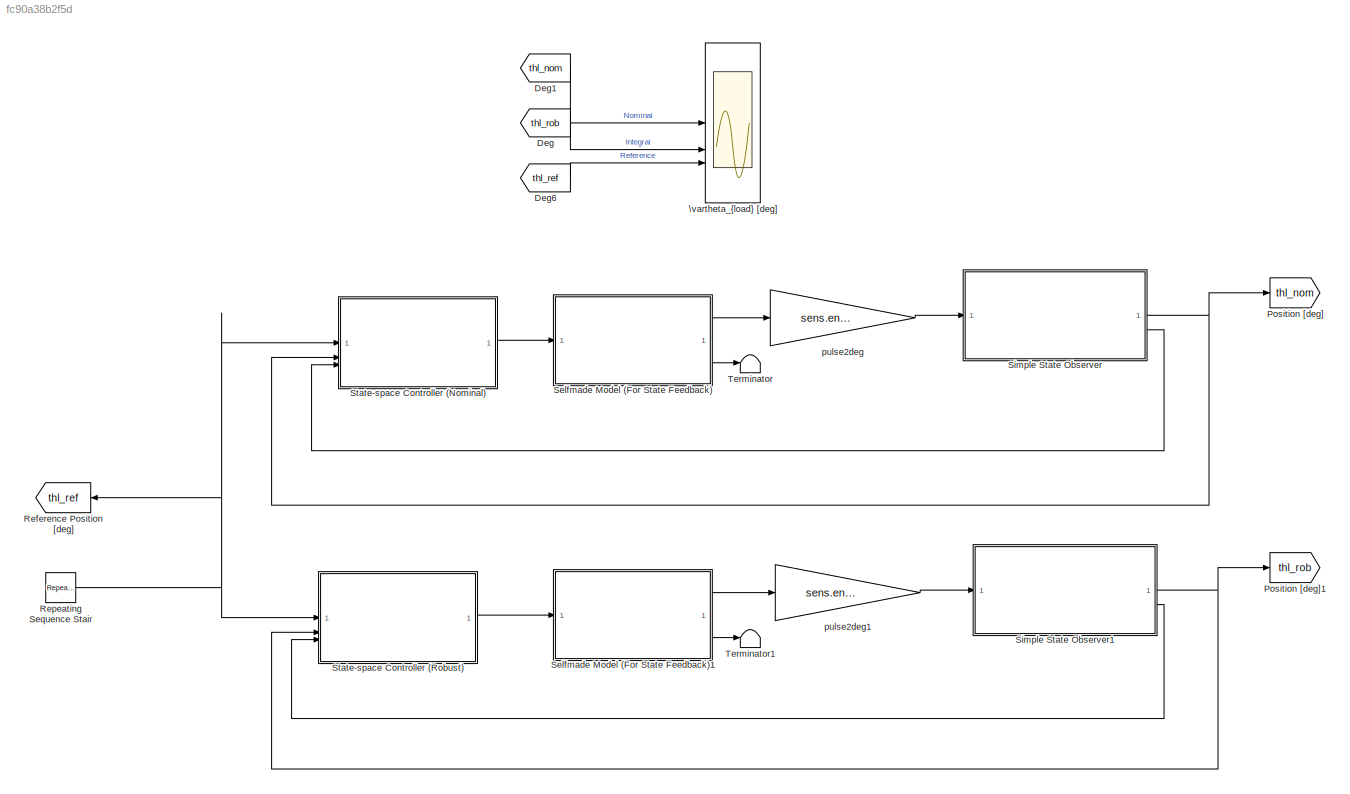
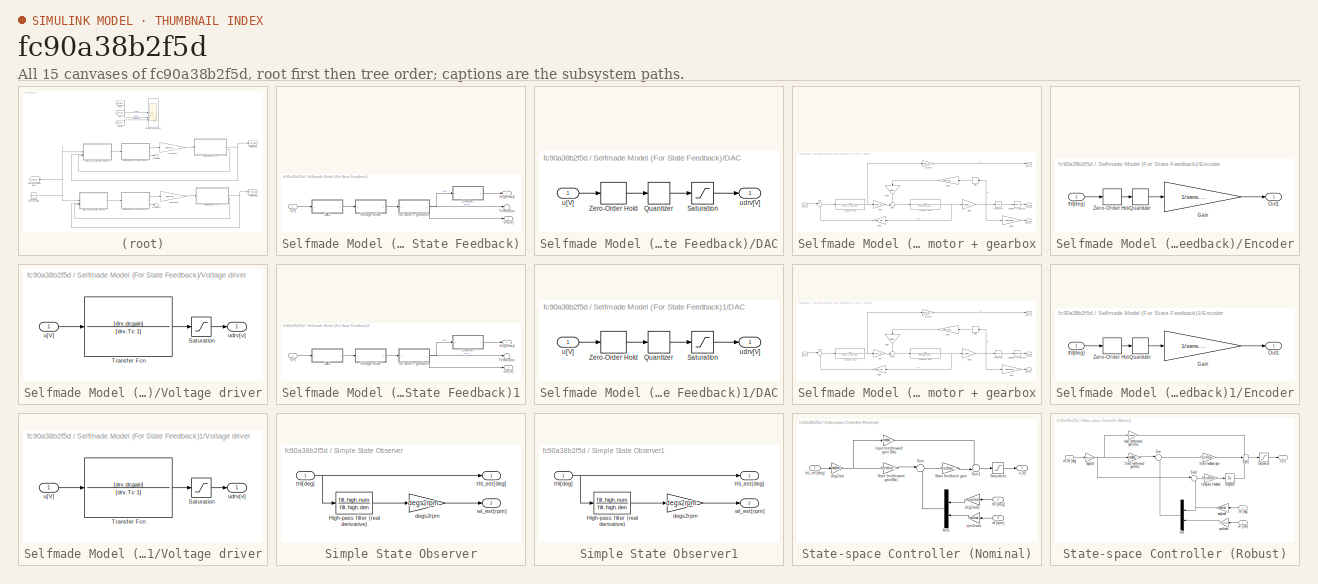
[diagram: thumbnail index - all 15 canvases of the model, root first then tree order]
MODEL slx_fc90a38b2f5d
KIND model
CONFIG AbsTol = auto
CONFIG EnableMultiTasking = off
CONFIG FixedStep = auto
CONFIG MaxStep = auto
CONFIG MinStep = auto
CONFIG RelTol = auto
CONFIG SampleTimeConstraint = Unconstrained
CONFIG SolverName = ode45
CONFIG StartTime = 0.0
CONFIG StopTime = sIn.simulation_time
BLOCK [From] Deg
  GotoTag = thl_rob
BLOCK [From] Deg1
  GotoTag = thl_nom
BLOCK [From] Deg6
  GotoTag = thl_ref
BLOCK [Goto] Position [deg]
  GotoTag = thl_nom
BLOCK [Goto] Position [deg]1
  GotoTag = thl_rob
BLOCK [Goto] Reference Position [deg]
  GotoTag = thl_ref
  NameLocation = top
BLOCK [Reference] Repeating Sequence Stair  REF=simulink/Sources/Repeating
Sequence
Stair
  SourceBlock = simulink/Sources/Repeating\nSequence\nStair
  SourceType = Repeating Sequence Stair
BLOCK [SubSystem] Selfmade Model (For State Feedback)
BLOCK [SubSystem] Selfmade Model (For State Feedback)/DAC
BLOCK [Quantizer] Selfmade Model (For State Feedback)/DAC/Quantizer
  QuantizationInterval = daq.dac.q
BLOCK [Saturate] Selfmade Model (For State Feedback)/DAC/Saturation
  LowerLimit = -10
  UpperLimit = 10
BLOCK [ZeroOrderHold] Selfmade Model (For State Feedback)/DAC/Zero-Order Hold
  SampleTime = 1e-3
BLOCK [Inport] Selfmade Model (For State Feedback)/DAC/u[V]
BLOCK [Outport] Selfmade Model (For State Feedback)/DAC/udrv[V]
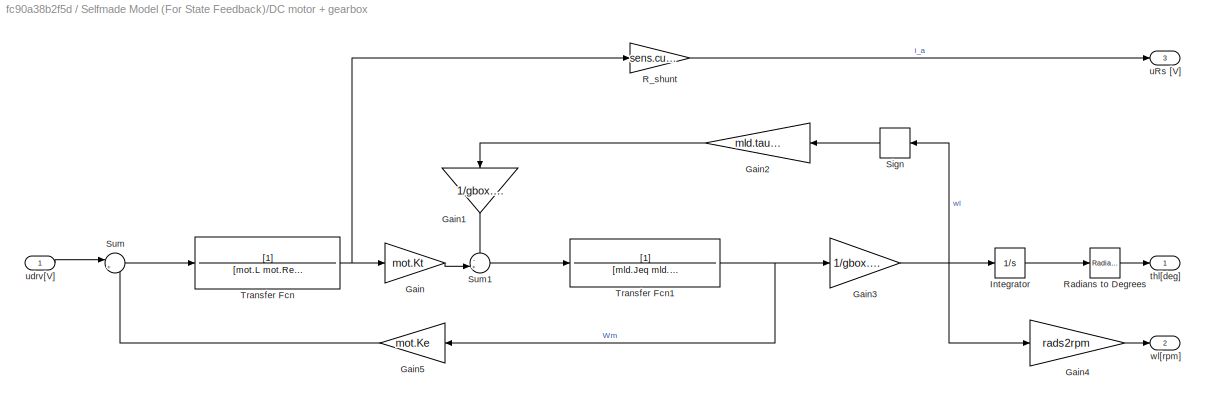
BLOCK [SubSystem] Selfmade Model (For State Feedback)/DC motor + gearbox
BLOCK [Gain] Selfmade Model (For State Feedback)/DC motor + gearbox/Gain
  Gain = mot.Kt
BLOCK [Gain] Selfmade Model (For State Feedback)/DC motor + gearbox/Gain1
  Gain = 1/gbox.N1
  NameLocation = left
BLOCK [Gain] Selfmade Model (For State Feedback)/DC motor + gearbox/Gain2
  Gain = mld.tausf
  NameLocation = top
BLOCK [Gain] Selfmade Model (For State Feedback)/DC motor + gearbox/Gain3
  Gain = 1/gbox.N1
BLOCK [Gain] Selfmade Model (For State Feedback)/DC motor + gearbox/Gain4
  Gain = rads2rpm
BLOCK [Gain] Selfmade Model (For State Feedback)/DC motor + gearbox/Gain5
  Gain = mot.Ke
  NameLocation = top
BLOCK [Integrator] Selfmade Model (For State Feedback)/DC motor + gearbox/Integrator
BLOCK [Gain] Selfmade Model (For State Feedback)/DC motor + gearbox/R_shunt
  Gain = sens.curr.Rs
BLOCK [Reference] Selfmade Model (For State Feedback)/DC motor + gearbox/Radians to Degrees  REF=simulink_extras/Transformations/Radians
to Degrees
  SourceBlock = simulink_extras/Transformations/Radians\nto Degrees
  SourceType = RadiansToDegrees
BLOCK [Signum] Selfmade Model (For State Feedback)/DC motor + gearbox/Sign
  NameLocation = top
  ZeroCross = off
BLOCK [Sum] Selfmade Model (For State Feedback)/DC motor + gearbox/Sum
  Inputs = |+-
BLOCK [Sum] Selfmade Model (For State Feedback)/DC motor + gearbox/Sum1
  Inputs = -+|
BLOCK [TransferFcn] Selfmade Model (For State Feedback)/DC motor + gearbox/Transfer Fcn
  Denominator = [mot.L mot.Req]
BLOCK [TransferFcn] Selfmade Model (For State Feedback)/DC motor + gearbox/Transfer Fcn1
  Denominator = [mld.Jeq mld.Beq]
BLOCK [Outport] Selfmade Model (For State Feedback)/DC motor + gearbox/thl[deg]
BLOCK [Outport] Selfmade Model (For State Feedback)/DC motor + gearbox/uRs [V]
  Port = 3
BLOCK [Inport] Selfmade Model (For State Feedback)/DC motor + gearbox/udrv[V]
BLOCK [Outport] Selfmade Model (For State Feedback)/DC motor + gearbox/wl[rpm]
  Port = 2
BLOCK [SubSystem] Selfmade Model (For State Feedback)/Encoder
  NameLocation = top
BLOCK [Gain] Selfmade Model (For State Feedback)/Encoder/Gain
  Gain = 1/sens.enc.pulse2deg
BLOCK [Outport] Selfmade Model (For State Feedback)/Encoder/Out1
BLOCK [Quantizer] Selfmade Model (For State Feedback)/Encoder/Quantizer
  QuantizationInterval = sens.enc.pulse2deg
BLOCK [ZeroOrderHold] Selfmade Model (For State Feedback)/Encoder/Zero-Order Hold
  SampleTime = 1e-3
BLOCK [Inport] Selfmade Model (For State Feedback)/Encoder/thl[deg]
BLOCK [Terminator] Selfmade Model (For State Feedback)/Terminator
BLOCK [SubSystem] Selfmade Model (For State Feedback)/Voltage driver
BLOCK [Saturate] Selfmade Model (For State Feedback)/Voltage driver/Saturation
  LowerLimit = -12
  UpperLimit = 12
BLOCK [TransferFcn] Selfmade Model (For State Feedback)/Voltage driver/Transfer Fcn
  Denominator = [drv.Tc 1]
  Numerator = [drv.dcgain]
BLOCK [Inport] Selfmade Model (For State Feedback)/Voltage driver/u[V]
BLOCK [Outport] Selfmade Model (For State Feedback)/Voltage driver/udrv[v]
BLOCK [Outport] Selfmade Model (For State Feedback)/thl[pulses]
BLOCK [Outport] Selfmade Model (For State Feedback)/uRs [V]
  Port = 2
BLOCK [Inport] Selfmade Model (For State Feedback)/u[V]
BLOCK [SubSystem] Selfmade Model (For State Feedback)1
BLOCK [SubSystem] Selfmade Model (For State Feedback)1/DAC
BLOCK [Quantizer] Selfmade Model (For State Feedback)1/DAC/Quantizer
  QuantizationInterval = daq.dac.q
BLOCK [Saturate] Selfmade Model (For State Feedback)1/DAC/Saturation
  LowerLimit = -10
  UpperLimit = 10
BLOCK [ZeroOrderHold] Selfmade Model (For State Feedback)1/DAC/Zero-Order Hold
  SampleTime = 1e-3
BLOCK [Inport] Selfmade Model (For State Feedback)1/DAC/u[V]
BLOCK [Outport] Selfmade Model (For State Feedback)1/DAC/udrv[V]
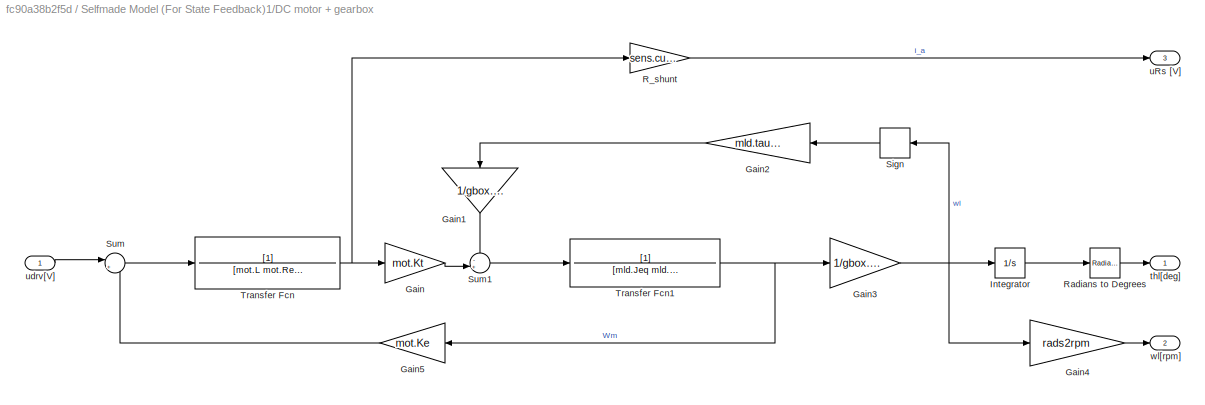
BLOCK [SubSystem] Selfmade Model (For State Feedback)1/DC motor + gearbox
BLOCK [Gain] Selfmade Model (For State Feedback)1/DC motor + gearbox/Gain
  Gain = mot.Kt
BLOCK [Gain] Selfmade Model (For State Feedback)1/DC motor + gearbox/Gain1
  Gain = 1/gbox.N1
  NameLocation = left
BLOCK [Gain] Selfmade Model (For State Feedback)1/DC motor + gearbox/Gain2
  Gain = mld.tausf
  NameLocation = top
BLOCK [Gain] Selfmade Model (For State Feedback)1/DC motor + gearbox/Gain3
  Gain = 1/gbox.N1
BLOCK [Gain] Selfmade Model (For State Feedback)1/DC motor + gearbox/Gain4
  Gain = rads2rpm
BLOCK [Gain] Selfmade Model (For State Feedback)1/DC motor + gearbox/Gain5
  Gain = mot.Ke
  NameLocation = top
BLOCK [Integrator] Selfmade Model (For State Feedback)1/DC motor + gearbox/Integrator
BLOCK [Gain] Selfmade Model (For State Feedback)1/DC motor + gearbox/R_shunt
  Gain = sens.curr.Rs
BLOCK [Reference] Selfmade Model (For State Feedback)1/DC motor + gearbox/Radians to Degrees  REF=simulink_extras/Transformations/Radians
to Degrees
  SourceBlock = simulink_extras/Transformations/Radians\nto Degrees
  SourceType = RadiansToDegrees
BLOCK [Signum] Selfmade Model (For State Feedback)1/DC motor + gearbox/Sign
  NameLocation = top
  ZeroCross = off
BLOCK [Sum] Selfmade Model (For State Feedback)1/DC motor + gearbox/Sum
  Inputs = |+-
BLOCK [Sum] Selfmade Model (For State Feedback)1/DC motor + gearbox/Sum1
  Inputs = -+|
BLOCK [TransferFcn] Selfmade Model (For State Feedback)1/DC motor + gearbox/Transfer Fcn
  Denominator = [mot.L mot.Req]
BLOCK [TransferFcn] Selfmade Model (For State Feedback)1/DC motor + gearbox/Transfer Fcn1
  Denominator = [mld.Jeq mld.Beq]
BLOCK [Outport] Selfmade Model (For State Feedback)1/DC motor + gearbox/thl[deg]
BLOCK [Outport] Selfmade Model (For State Feedback)1/DC motor + gearbox/uRs [V]
  Port = 3
BLOCK [Inport] Selfmade Model (For State Feedback)1/DC motor + gearbox/udrv[V]
BLOCK [Outport] Selfmade Model (For State Feedback)1/DC motor + gearbox/wl[rpm]
  Port = 2
BLOCK [SubSystem] Selfmade Model (For State Feedback)1/Encoder
  NameLocation = top
BLOCK [Gain] Selfmade Model (For State Feedback)1/Encoder/Gain
  Gain = 1/sens.enc.pulse2deg
BLOCK [Outport] Selfmade Model (For State Feedback)1/Encoder/Out1
BLOCK [Quantizer] Selfmade Model (For State Feedback)1/Encoder/Quantizer
  QuantizationInterval = sens.enc.pulse2deg
BLOCK [ZeroOrderHold] Selfmade Model (For State Feedback)1/Encoder/Zero-Order Hold
  SampleTime = 1e-3
BLOCK [Inport] Selfmade Model (For State Feedback)1/Encoder/thl[deg]
BLOCK [Terminator] Selfmade Model (For State Feedback)1/Terminator
BLOCK [SubSystem] Selfmade Model (For State Feedback)1/Voltage driver
BLOCK [Saturate] Selfmade Model (For State Feedback)1/Voltage driver/Saturation
  LowerLimit = -12
  UpperLimit = 12
BLOCK [TransferFcn] Selfmade Model (For State Feedback)1/Voltage driver/Transfer Fcn
  Denominator = [drv.Tc 1]
  Numerator = [drv.dcgain]
BLOCK [Inport] Selfmade Model (For State Feedback)1/Voltage driver/u[V]
BLOCK [Outport] Selfmade Model (For State Feedback)1/Voltage driver/udrv[v]
BLOCK [Outport] Selfmade Model (For State Feedback)1/thl[pulses]
BLOCK [Outport] Selfmade Model (For State Feedback)1/uRs [V]
  Port = 2
BLOCK [Inport] Selfmade Model (For State Feedback)1/u[V]
BLOCK [SubSystem] Simple State Observer
BLOCK [TransferFcn] Simple State Observer/High-pass filter (real derivative)
  Denominator = filt.high.den
  Numerator = filt.high.num
BLOCK [Gain] Simple State Observer/degs2rpm
  Gain = degs2rpm
BLOCK [Inport] Simple State Observer/thl[deg]
BLOCK [Outport] Simple State Observer/thl_est[deg]
BLOCK [Outport] Simple State Observer/wl_est[rpm]
  Port = 2
BLOCK [SubSystem] Simple State Observer1
BLOCK [TransferFcn] Simple State Observer1/High-pass filter (real derivative)
  Denominator = filt.high.den
  Numerator = filt.high.num
BLOCK [Gain] Simple State Observer1/degs2rpm
  Gain = degs2rpm
BLOCK [Inport] Simple State Observer1/thl[deg]
BLOCK [Outport] Simple State Observer1/thl_est[deg]
BLOCK [Outport] Simple State Observer1/wl_est[rpm]
  Port = 2
BLOCK [SubSystem] State-space Controller (Nominal)
BLOCK [Gain] State-space Controller (Nominal)/Input feedforward gain (Nu)
  Gain = feedback.Nu
BLOCK [Mux] State-space Controller (Nominal)/Mux
  DisplayOption = bar
  Inputs = 2
  NameLocation = top
BLOCK [Saturate] State-space Controller (Nominal)/Saturation
  LowerLimit = -10
  UpperLimit = 10
BLOCK [Gain] State-space Controller (Nominal)/State feedback gain
  Gain = feedback.nominal.place.K
  Multiplication = Matrix(K*u)
BLOCK [Gain] State-space Controller (Nominal)/State feedforward gain(Nx)
  Gain = feedback.Nx
BLOCK [Sum] State-space Controller (Nominal)/Sum
  Inputs = |+-
BLOCK [Sum] State-space Controller (Nominal)/Sum1
  Inputs = ++|
BLOCK [Gain] State-space Controller (Nominal)/deg2rad
  Gain = deg2rad
BLOCK [Gain] State-space Controller (Nominal)/deg2rad2
  Gain = deg2rad
  NameLocation = top
BLOCK [Gain] State-space Controller (Nominal)/rpm2rads
  Gain = rpm2rads
  NameLocation = top
BLOCK [Inport] State-space Controller (Nominal)/thl [deg]
  NameLocation = top
  Port = 2
BLOCK [Inport] State-space Controller (Nominal)/thl_ref [deg]
BLOCK [Outport] State-space Controller (Nominal)/u [V]
BLOCK [Inport] State-space Controller (Nominal)/wl [rpm]
  NameLocation = top
  Port = 3
BLOCK [SubSystem] State-space Controller (Robust)
BLOCK [Gain] State-space Controller (Robust)/Input feedforward gain (Nu)
  Gain = feedback.Nu
BLOCK [Integrator] State-space Controller (Robust)/Integrator
BLOCK [Gain] State-space Controller (Robust)/Integrator feedback
  Gain = feedback.integ.acker.Ki
BLOCK [Mux] State-space Controller (Robust)/Mux
  DisplayOption = bar
  Inputs = 2
  NameLocation = top
BLOCK [Saturate] State-space Controller (Robust)/Saturation
  LowerLimit = -10
  UpperLimit = 10
BLOCK [Gain] State-space Controller (Robust)/State feedback gain
  Gain = feedback.integ.acker.K
  Multiplication = Matrix(K*u)
BLOCK [Gain] State-space Controller (Robust)/State feedforward gain(Nx)
  Gain = feedback.Nx
BLOCK [Sum] State-space Controller (Robust)/Sum
  Inputs = |+-
BLOCK [Sum] State-space Controller (Robust)/Sum1
  Inputs = +++
BLOCK [Sum] State-space Controller (Robust)/Sum2
  Inputs = |+-
BLOCK [Gain] State-space Controller (Robust)/deg2rad
  Gain = deg2rad
BLOCK [Gain] State-space Controller (Robust)/deg2rad2
  Gain = deg2rad
  NameLocation = top
BLOCK [Gain] State-space Controller (Robust)/rpm2rads
  Gain = rpm2rads
  NameLocation = top
BLOCK [Inport] State-space Controller (Robust)/thl [deg]
  NameLocation = top
  Port = 2
BLOCK [Inport] State-space Controller (Robust)/thl_ref [deg]
BLOCK [Outport] State-space Controller (Robust)/u [V]
BLOCK [Inport] State-space Controller (Robust)/wl [rpm]
  NameLocation = top
  Port = 3
BLOCK [Terminator] Terminator
BLOCK [Terminator] Terminator1
BLOCK [Scope] \vartheta_{load} [deg]
  Floating = off
  NumInputPorts = 3
  ScopeSpecificationString = Simulink.scopes.TimeScopeBlockCfg('CurrentConfiguration', extmgr.ConfigurationSet(extmgr.Configuration('Core','General UI',true),extmgr.Configuration('Core','Source UI',true),extmgr.Configuration('Sources','WiredSimulink',true,'DataLoggingVariableName','out_th_l','DataLogging',true,'DataLoggingSaveFormat','StructureWithTime'),extmgr.Configuration('Visuals','Time Domain',true,'SerializedDisplays',{...<+1708ch>
BLOCK [Gain] pulse2deg
  Gain = sens.enc.pulse2deg
BLOCK [Gain] pulse2deg1
  Gain = sens.enc.pulse2deg
LINE Deg1:1 -> \vartheta_{load} [deg]:1
LINE Deg6:1 -> \vartheta_{load} [deg]:3
LINE Deg:1 -> \vartheta_{load} [deg]:2
NET Repeating Sequence Stair:1 -> Reference Position [deg]:1, State-space Controller (Nominal):1, State-space Controller (Robust):1
LINE Selfmade Model (For State Feedback)/DAC/Quantizer:1 -> Selfmade Model (For State Feedback)/DAC/Saturation:1
LINE Selfmade Model (For State Feedback)/DAC/Saturation:1 -> Selfmade Model (For State Feedback)/DAC/udrv[V]:1
LINE Selfmade Model (For State Feedback)/DAC/Zero-Order Hold:1 -> Selfmade Model (For State Feedback)/DAC/Quantizer:1
LINE Selfmade Model (For State Feedback)/DAC/u[V]:1 -> Selfmade Model (For State Feedback)/DAC/Zero-Order Hold:1
LINE Selfmade Model (For State Feedback)/DAC:1 -> Selfmade Model (For State Feedback)/Voltage driver:1
LINE Selfmade Model (For State Feedback)/DC motor + gearbox/Gain1:1 -> Selfmade Model (For State Feedback)/DC motor + gearbox/Sum1:1
LINE Selfmade Model (For State Feedback)/DC motor + gearbox/Gain2:1 -> Selfmade Model (For State Feedback)/DC motor + gearbox/Gain1:1
NET Selfmade Model (For State Feedback)/DC motor + gearbox/Gain3:1 -> Selfmade Model (For State Feedback)/DC motor + gearbox/Gain4:1, Selfmade Model (For State Feedback)/DC motor + gearbox/Integrator:1, Selfmade Model (For State Feedback)/DC motor + gearbox/Sign:1
LINE Selfmade Model (For State Feedback)/DC motor + gearbox/Gain4:1 -> Selfmade Model (For State Feedback)/DC motor + gearbox/wl[rpm]:1
LINE Selfmade Model (For State Feedback)/DC motor + gearbox/Gain5:1 -> Selfmade Model (For State Feedback)/DC motor + gearbox/Sum:2
LINE Selfmade Model (For State Feedback)/DC motor + gearbox/Gain:1 -> Selfmade Model (For State Feedback)/DC motor + gearbox/Sum1:2
LINE Selfmade Model (For State Feedback)/DC motor + gearbox/Integrator:1 -> Selfmade Model (For State Feedback)/DC motor + gearbox/Radians to Degrees:1
LINE Selfmade Model (For State Feedback)/DC motor + gearbox/R_shunt:1 -> Selfmade Model (For State Feedback)/DC motor + gearbox/uRs [V]:1
LINE Selfmade Model (For State Feedback)/DC motor + gearbox/Radians to Degrees:1 -> Selfmade Model (For State Feedback)/DC motor + gearbox/thl[deg]:1
LINE Selfmade Model (For State Feedback)/DC motor + gearbox/Sign:1 -> Selfmade Model (For State Feedback)/DC motor + gearbox/Gain2:1
LINE Selfmade Model (For State Feedback)/DC motor + gearbox/Sum1:1 -> Selfmade Model (For State Feedback)/DC motor + gearbox/Transfer Fcn1:1
LINE Selfmade Model (For State Feedback)/DC motor + gearbox/Sum:1 -> Selfmade Model (For State Feedback)/DC motor + gearbox/Transfer Fcn:1
NET Selfmade Model (For State Feedback)/DC motor + gearbox/Transfer Fcn1:1 -> Selfmade Model (For State Feedback)/DC motor + gearbox/Gain3:1, Selfmade Model (For State Feedback)/DC motor + gearbox/Gain5:1
NET Selfmade Model (For State Feedback)/DC motor + gearbox/Transfer Fcn:1 -> Selfmade Model (For State Feedback)/DC motor + gearbox/Gain:1, Selfmade Model (For State Feedback)/DC motor + gearbox/R_shunt:1
LINE Selfmade Model (For State Feedback)/DC motor + gearbox/udrv[V]:1 -> Selfmade Model (For State Feedback)/DC motor + gearbox/Sum:1
LINE Selfmade Model (For State Feedback)/DC motor + gearbox:1 -> Selfmade Model (For State Feedback)/Encoder:1
LINE Selfmade Model (For State Feedback)/DC motor + gearbox:2 -> Selfmade Model (For State Feedback)/Terminator:1
LINE Selfmade Model (For State Feedback)/DC motor + gearbox:3 -> Selfmade Model (For State Feedback)/uRs [V]:1
LINE Selfmade Model (For State Feedback)/Encoder/Gain:1 -> Selfmade Model (For State Feedback)/Encoder/Out1:1
LINE Selfmade Model (For State Feedback)/Encoder/Quantizer:1 -> Selfmade Model (For State Feedback)/Encoder/Gain:1
LINE Selfmade Model (For State Feedback)/Encoder/Zero-Order Hold:1 -> Selfmade Model (For State Feedback)/Encoder/Quantizer:1
LINE Selfmade Model (For State Feedback)/Encoder/thl[deg]:1 -> Selfmade Model (For State Feedback)/Encoder/Zero-Order Hold:1
LINE Selfmade Model (For State Feedback)/Encoder:1 -> Selfmade Model (For State Feedback)/thl[pulses]:1
LINE Selfmade Model (For State Feedback)/Voltage driver/Saturation:1 -> Selfmade Model (For State Feedback)/Voltage driver/udrv[v]:1
LINE Selfmade Model (For State Feedback)/Voltage driver/Transfer Fcn:1 -> Selfmade Model (For State Feedback)/Voltage driver/Saturation:1
LINE Selfmade Model (For State Feedback)/Voltage driver/u[V]:1 -> Selfmade Model (For State Feedback)/Voltage driver/Transfer Fcn:1
LINE Selfmade Model (For State Feedback)/Voltage driver:1 -> Selfmade Model (For State Feedback)/DC motor + gearbox:1
LINE Selfmade Model (For State Feedback)/u[V]:1 -> Selfmade Model (For State Feedback)/DAC:1
LINE Selfmade Model (For State Feedback)1/DAC/Quantizer:1 -> Selfmade Model (For State Feedback)1/DAC/Saturation:1
LINE Selfmade Model (For State Feedback)1/DAC/Saturation:1 -> Selfmade Model (For State Feedback)1/DAC/udrv[V]:1
LINE Selfmade Model (For State Feedback)1/DAC/Zero-Order Hold:1 -> Selfmade Model (For State Feedback)1/DAC/Quantizer:1
LINE Selfmade Model (For State Feedback)1/DAC/u[V]:1 -> Selfmade Model (For State Feedback)1/DAC/Zero-Order Hold:1
LINE Selfmade Model (For State Feedback)1/DAC:1 -> Selfmade Model (For State Feedback)1/Voltage driver:1
LINE Selfmade Model (For State Feedback)1/DC motor + gearbox/Gain1:1 -> Selfmade Model (For State Feedback)1/DC motor + gearbox/Sum1:1
LINE Selfmade Model (For State Feedback)1/DC motor + gearbox/Gain2:1 -> Selfmade Model (For State Feedback)1/DC motor + gearbox/Gain1:1
NET Selfmade Model (For State Feedback)1/DC motor + gearbox/Gain3:1 -> Selfmade Model (For State Feedback)1/DC motor + gearbox/Gain4:1, Selfmade Model (For State Feedback)1/DC motor + gearbox/Integrator:1, Selfmade Model (For State Feedback)1/DC motor + gearbox/Sign:1
LINE Selfmade Model (For State Feedback)1/DC motor + gearbox/Gain4:1 -> Selfmade Model (For State Feedback)1/DC motor + gearbox/wl[rpm]:1
LINE Selfmade Model (For State Feedback)1/DC motor + gearbox/Gain5:1 -> Selfmade Model (For State Feedback)1/DC motor + gearbox/Sum:2
LINE Selfmade Model (For State Feedback)1/DC motor + gearbox/Gain:1 -> Selfmade Model (For State Feedback)1/DC motor + gearbox/Sum1:2
LINE Selfmade Model (For State Feedback)1/DC motor + gearbox/Integrator:1 -> Selfmade Model (For State Feedback)1/DC motor + gearbox/Radians to Degrees:1
LINE Selfmade Model (For State Feedback)1/DC motor + gearbox/R_shunt:1 -> Selfmade Model (For State Feedback)1/DC motor + gearbox/uRs [V]:1
LINE Selfmade Model (For State Feedback)1/DC motor + gearbox/Radians to Degrees:1 -> Selfmade Model (For State Feedback)1/DC motor + gearbox/thl[deg]:1
LINE Selfmade Model (For State Feedback)1/DC motor + gearbox/Sign:1 -> Selfmade Model (For State Feedback)1/DC motor + gearbox/Gain2:1
LINE Selfmade Model (For State Feedback)1/DC motor + gearbox/Sum1:1 -> Selfmade Model (For State Feedback)1/DC motor + gearbox/Transfer Fcn1:1
LINE Selfmade Model (For State Feedback)1/DC motor + gearbox/Sum:1 -> Selfmade Model (For State Feedback)1/DC motor + gearbox/Transfer Fcn:1
NET Selfmade Model (For State Feedback)1/DC motor + gearbox/Transfer Fcn1:1 -> Selfmade Model (For State Feedback)1/DC motor + gearbox/Gain3:1, Selfmade Model (For State Feedback)1/DC motor + gearbox/Gain5:1
NET Selfmade Model (For State Feedback)1/DC motor + gearbox/Transfer Fcn:1 -> Selfmade Model (For State Feedback)1/DC motor + gearbox/Gain:1, Selfmade Model (For State Feedback)1/DC motor + gearbox/R_shunt:1
LINE Selfmade Model (For State Feedback)1/DC motor + gearbox/udrv[V]:1 -> Selfmade Model (For State Feedback)1/DC motor + gearbox/Sum:1
LINE Selfmade Model (For State Feedback)1/DC motor + gearbox:1 -> Selfmade Model (For State Feedback)1/Encoder:1
LINE Selfmade Model (For State Feedback)1/DC motor + gearbox:2 -> Selfmade Model (For State Feedback)1/Terminator:1
LINE Selfmade Model (For State Feedback)1/DC motor + gearbox:3 -> Selfmade Model (For State Feedback)1/uRs [V]:1
LINE Selfmade Model (For State Feedback)1/Encoder/Gain:1 -> Selfmade Model (For State Feedback)1/Encoder/Out1:1
LINE Selfmade Model (For State Feedback)1/Encoder/Quantizer:1 -> Selfmade Model (For State Feedback)1/Encoder/Gain:1
LINE Selfmade Model (For State Feedback)1/Encoder/Zero-Order Hold:1 -> Selfmade Model (For State Feedback)1/Encoder/Quantizer:1
LINE Selfmade Model (For State Feedback)1/Encoder/thl[deg]:1 -> Selfmade Model (For State Feedback)1/Encoder/Zero-Order Hold:1
LINE Selfmade Model (For State Feedback)1/Encoder:1 -> Selfmade Model (For State Feedback)1/thl[pulses]:1
LINE Selfmade Model (For State Feedback)1/Voltage driver/Saturation:1 -> Selfmade Model (For State Feedback)1/Voltage driver/udrv[v]:1
LINE Selfmade Model (For State Feedback)1/Voltage driver/Transfer Fcn:1 -> Selfmade Model (For State Feedback)1/Voltage driver/Saturation:1
LINE Selfmade Model (For State Feedback)1/Voltage driver/u[V]:1 -> Selfmade Model (For State Feedback)1/Voltage driver/Transfer Fcn:1
LINE Selfmade Model (For State Feedback)1/Voltage driver:1 -> Selfmade Model (For State Feedback)1/DC motor + gearbox:1
LINE Selfmade Model (For State Feedback)1/u[V]:1 -> Selfmade Model (For State Feedback)1/DAC:1
LINE Selfmade Model (For State Feedback)1:1 -> pulse2deg1:1
LINE Selfmade Model (For State Feedback)1:2 -> Terminator1:1
LINE Selfmade Model (For State Feedback):1 -> pulse2deg:1
LINE Selfmade Model (For State Feedback):2 -> Terminator:1
LINE Simple State Observer/High-pass filter (real derivative):1 -> Simple State Observer/degs2rpm:1
LINE Simple State Observer/degs2rpm:1 -> Simple State Observer/wl_est[rpm]:1
NET Simple State Observer/thl[deg]:1 -> Simple State Observer/High-pass filter (real derivative):1, Simple State Observer/thl_est[deg]:1
LINE Simple State Observer1/High-pass filter (real derivative):1 -> Simple State Observer1/degs2rpm:1
LINE Simple State Observer1/degs2rpm:1 -> Simple State Observer1/wl_est[rpm]:1
NET Simple State Observer1/thl[deg]:1 -> Simple State Observer1/High-pass filter (real derivative):1, Simple State Observer1/thl_est[deg]:1
NET Simple State Observer1:1 -> Position [deg]1:1, State-space Controller (Robust):2
LINE Simple State Observer1:2 -> State-space Controller (Robust):3
NET Simple State Observer:1 -> Position [deg]:1, State-space Controller (Nominal):2
LINE Simple State Observer:2 -> State-space Controller (Nominal):3
LINE State-space Controller (Nominal)/Input feedforward gain (Nu):1 -> State-space Controller (Nominal)/Sum1:1
LINE State-space Controller (Nominal)/Mux:1 -> State-space Controller (Nominal)/Sum:2
LINE State-space Controller (Nominal)/Saturation:1 -> State-space Controller (Nominal)/u [V]:1
LINE State-space Controller (Nominal)/State feedback gain:1 -> State-space Controller (Nominal)/Sum1:2
LINE State-space Controller (Nominal)/State feedforward gain(Nx):1 -> State-space Controller (Nominal)/Sum:1
LINE State-space Controller (Nominal)/Sum1:1 -> State-space Controller (Nominal)/Saturation:1
LINE State-space Controller (Nominal)/Sum:1 -> State-space Controller (Nominal)/State feedback gain:1
LINE State-space Controller (Nominal)/deg2rad2:1 -> State-space Controller (Nominal)/Mux:1
NET State-space Controller (Nominal)/deg2rad:1 -> State-space Controller (Nominal)/Input feedforward gain (Nu):1, State-space Controller (Nominal)/State feedforward gain(Nx):1
LINE State-space Controller (Nominal)/rpm2rads:1 -> State-space Controller (Nominal)/Mux:2
LINE State-space Controller (Nominal)/thl [deg]:1 -> State-space Controller (Nominal)/deg2rad2:1
LINE State-space Controller (Nominal)/thl_ref [deg]:1 -> State-space Controller (Nominal)/deg2rad:1
LINE State-space Controller (Nominal)/wl [rpm]:1 -> State-space Controller (Nominal)/rpm2rads:1
LINE State-space Controller (Nominal):1 -> Selfmade Model (For State Feedback):1
LINE State-space Controller (Robust)/Input feedforward gain (Nu):1 -> State-space Controller (Robust)/Sum1:1
LINE State-space Controller (Robust)/Integrator feedback:1 -> State-space Controller (Robust)/Integrator:1
LINE State-space Controller (Robust)/Integrator:1 -> State-space Controller (Robust)/Sum1:3
LINE State-space Controller (Robust)/Mux:1 -> State-space Controller (Robust)/Sum:2
LINE State-space Controller (Robust)/Saturation:1 -> State-space Controller (Robust)/u [V]:1
LINE State-space Controller (Robust)/State feedback gain:1 -> State-space Controller (Robust)/Sum1:2
LINE State-space Controller (Robust)/State feedforward gain(Nx):1 -> State-space Controller (Robust)/Sum:1
LINE State-space Controller (Robust)/Sum1:1 -> State-space Controller (Robust)/Saturation:1
LINE State-space Controller (Robust)/Sum2:1 -> State-space Controller (Robust)/Integrator feedback:1
LINE State-space Controller (Robust)/Sum:1 -> State-space Controller (Robust)/State feedback gain:1
NET State-space Controller (Robust)/deg2rad2:1 -> State-space Controller (Robust)/Mux:1, State-space Controller (Robust)/Sum2:2
NET State-space Controller (Robust)/deg2rad:1 -> State-space Controller (Robust)/Input feedforward gain (Nu):1, State-space Controller (Robust)/State feedforward gain(Nx):1, State-space Controller (Robust)/Sum2:1
LINE State-space Controller (Robust)/rpm2rads:1 -> State-space Controller (Robust)/Mux:2
LINE State-space Controller (Robust)/thl [deg]:1 -> State-space Controller (Robust)/deg2rad2:1
LINE State-space Controller (Robust)/thl_ref [deg]:1 -> State-space Controller (Robust)/deg2rad:1
LINE State-space Controller (Robust)/wl [rpm]:1 -> State-space Controller (Robust)/rpm2rads:1
LINE State-space Controller (Robust):1 -> Selfmade Model (For State Feedback)1:1
LINE pulse2deg1:1 -> Simple State Observer1:1
LINE pulse2deg:1 -> Simple State Observer:1
note: NET lines group one-source signal fan-out (src -> all destinations, sorted); 1:1 wires keep LINE
